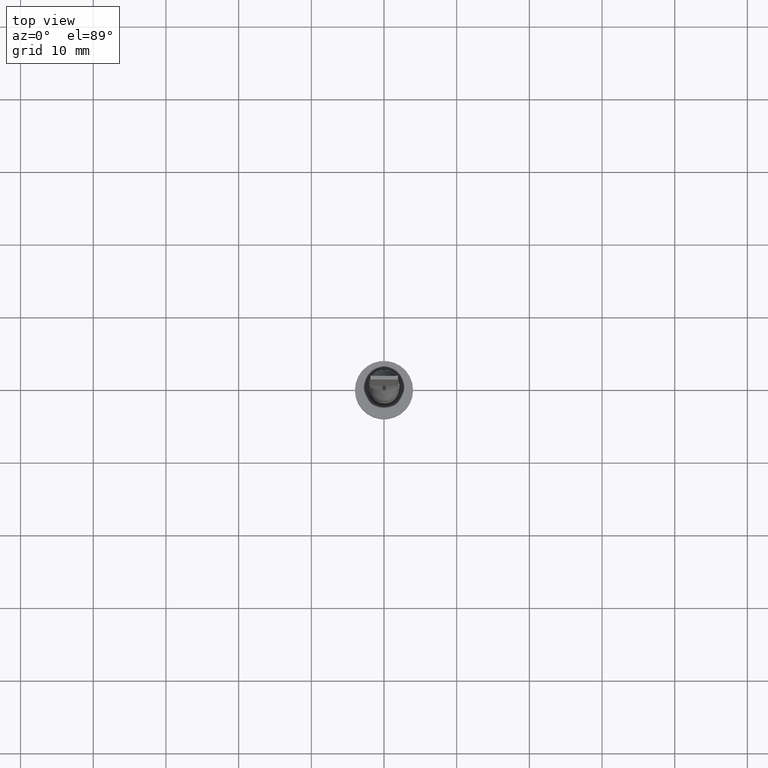
[diagram: clean part render]
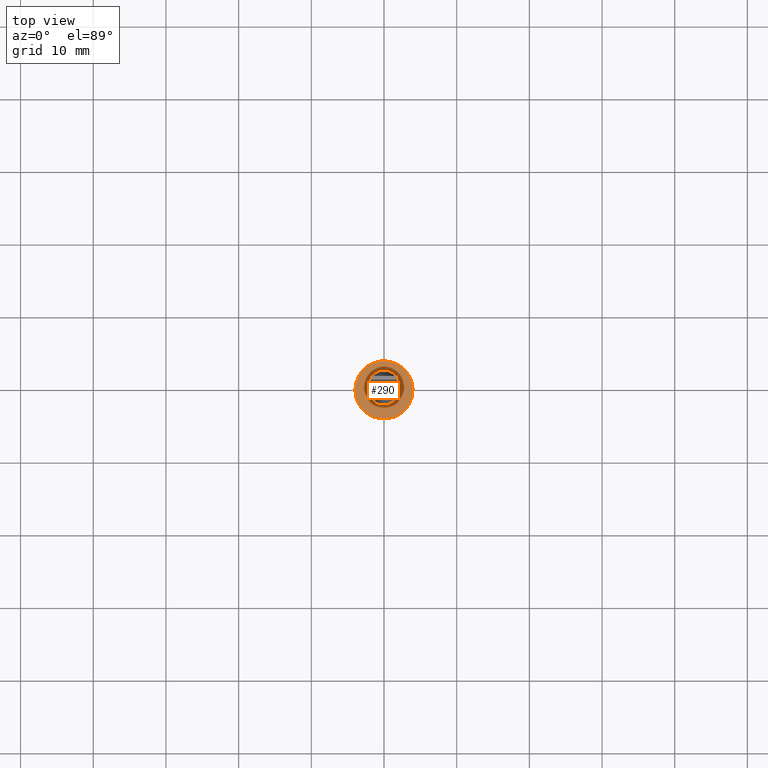
[diagram: same view with one face highlighted and labeled with its STEP entity id]
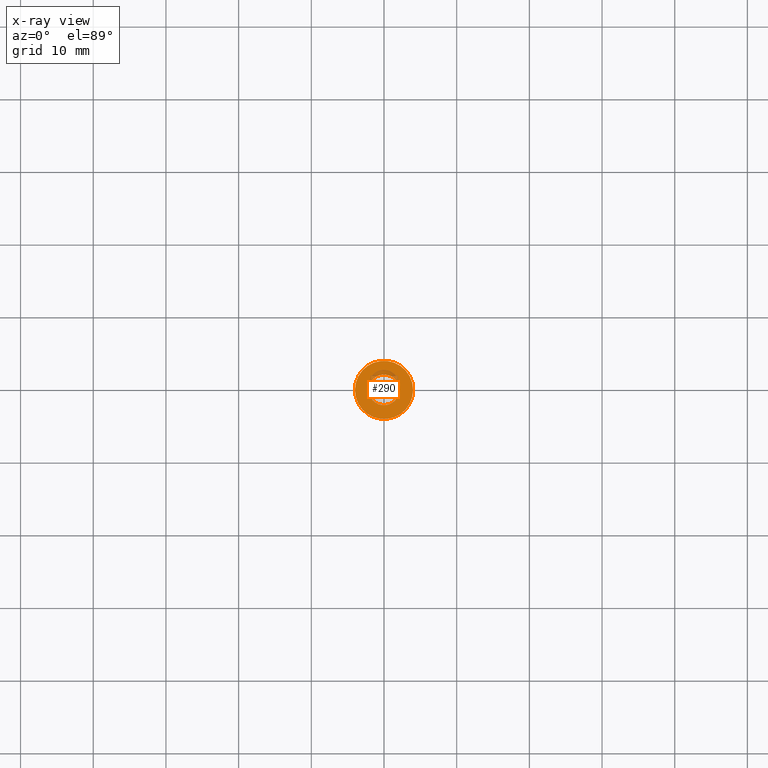
[diagram: x-ray of the same camera — body ghosted, the highlighted face saturated]
A machine part, top view. The second image highlights one B-rep face of the part: STEP entity #290.
The next image is the same camera in x-ray: the body ghosted, the highlighted face saturated — about 8% of this face is hidden behind the body in this view.
In plain terms, the highlighted planar face has unit normal (0, 0, 1).
Its self-contained STEP definition (entity closure, byte-faithful):
#2 = CIRCLE ( 'NONE', #413, 2.100000000000000089 ) ;
#11 = EDGE_LOOP ( 'NONE', ( #332, #119 ) ) ;
#25 = CARTESIAN_POINT ( 'NONE',  ( 0.000000000000000000, 0.000000000000000000, 3.000000000000000000 ) ) ;
#42 = VERTEX_POINT ( 'NONE', #280 ) ;
#56 = DIRECTION ( 'NONE',  ( 1.000000000000000000, 0.000000000000000000, 0.000000000000000000 ) ) ;
#59 = CARTESIAN_POINT ( 'NONE',  ( 0.000000000000000000, 0.000000000000000000, 3.000000000000000000 ) ) ;
#67 = EDGE_CURVE ( 'NONE', #42, #441, #141, .T. ) ;
#97 = CARTESIAN_POINT ( 'NONE',  ( 0.000000000000000000, 0.000000000000000000, 3.000000000000000000 ) ) ;
#100 = CIRCLE ( 'NONE', #240, 2.100000000000000089 ) ;
#113 = ORIENTED_EDGE ( 'NONE', *, *, #562, .F. ) ;
#118 = FACE_OUTER_BOUND ( 'NONE', #11, .T. ) ;
#119 = ORIENTED_EDGE ( 'NONE', *, *, #473, .T. ) ;
#141 = CIRCLE ( 'NONE', #360, 4.000000000000000000 ) ;
#240 = AXIS2_PLACEMENT_3D ( 'NONE', #572, #477, #251 ) ;
#247 = AXIS2_PLACEMENT_3D ( 'NONE', #59, #412, #517 ) ;
#251 = DIRECTION ( 'NONE',  ( 1.000000000000000000, 0.000000000000000000, 0.000000000000000000 ) ) ;
#257 = AXIS2_PLACEMENT_3D ( 'NONE', #25, #314, #581 ) ;
#266 = CIRCLE ( 'NONE', #247, 4.000000000000000000 ) ;
#280 = CARTESIAN_POINT ( 'NONE',  ( -4.000000000000000000, 0.000000000000000000, 3.000000000000000000 ) ) ;
#283 = DIRECTION ( 'NONE',  ( 0.000000000000000000, 0.000000000000000000, 1.000000000000000000 ) ) ;
#290 = ADVANCED_FACE ( 'NONE', ( #527, #118 ), #560, .T. ) ;
#294 = CARTESIAN_POINT ( 'NONE',  ( 0.000000000000000000, 0.000000000000000000, 3.000000000000000000 ) ) ;
#298 = DIRECTION ( 'NONE',  ( 1.000000000000000000, 0.000000000000000000, 0.000000000000000000 ) ) ;
#312 = CARTESIAN_POINT ( 'NONE',  ( 4.000000000000000000, 4.898587196589412829E-16, 3.000000000000000000 ) ) ;
#314 = DIRECTION ( 'NONE',  ( 0.000000000000000000, 0.000000000000000000, 1.000000000000000000 ) ) ;
#332 = ORIENTED_EDGE ( 'NONE', *, *, #67, .T. ) ;
#333 = CARTESIAN_POINT ( 'NONE',  ( 2.100000000000000089, 2.571758278209441957E-16, 3.000000000000000000 ) ) ;
#360 = AXIS2_PLACEMENT_3D ( 'NONE', #97, #283, #56 ) ;
#378 = ORIENTED_EDGE ( 'NONE', *, *, #507, .F. ) ;
#380 = VERTEX_POINT ( 'NONE', #578 ) ;
#393 = DIRECTION ( 'NONE',  ( 0.000000000000000000, 0.000000000000000000, 1.000000000000000000 ) ) ;
#412 = DIRECTION ( 'NONE',  ( 0.000000000000000000, 0.000000000000000000, 1.000000000000000000 ) ) ;
#413 = AXIS2_PLACEMENT_3D ( 'NONE', #294, #393, #298 ) ;
#441 = VERTEX_POINT ( 'NONE', #312 ) ;
#473 = EDGE_CURVE ( 'NONE', #441, #42, #266, .T. ) ;
#477 = DIRECTION ( 'NONE',  ( 0.000000000000000000, 0.000000000000000000, 1.000000000000000000 ) ) ;
#507 = EDGE_CURVE ( 'NONE', #536, #380, #2, .T. ) ;
#512 = EDGE_LOOP ( 'NONE', ( #113, #378 ) ) ;
#517 = DIRECTION ( 'NONE',  ( 1.000000000000000000, 0.000000000000000000, 0.000000000000000000 ) ) ;
#527 = FACE_BOUND ( 'NONE', #512, .T. ) ;
#536 = VERTEX_POINT ( 'NONE', #333 ) ;
#560 = PLANE ( 'NONE',  #257 ) ;
#562 = EDGE_CURVE ( 'NONE', #380, #536, #100, .T. ) ;
#572 = CARTESIAN_POINT ( 'NONE',  ( 0.000000000000000000, 0.000000000000000000, 3.000000000000000000 ) ) ;
#578 = CARTESIAN_POINT ( 'NONE',  ( -2.100000000000000089, 0.000000000000000000, 3.000000000000000000 ) ) ;
#581 = DIRECTION ( 'NONE',  ( 1.000000000000000000, 0.000000000000000000, -0.000000000000000000 ) ) ;